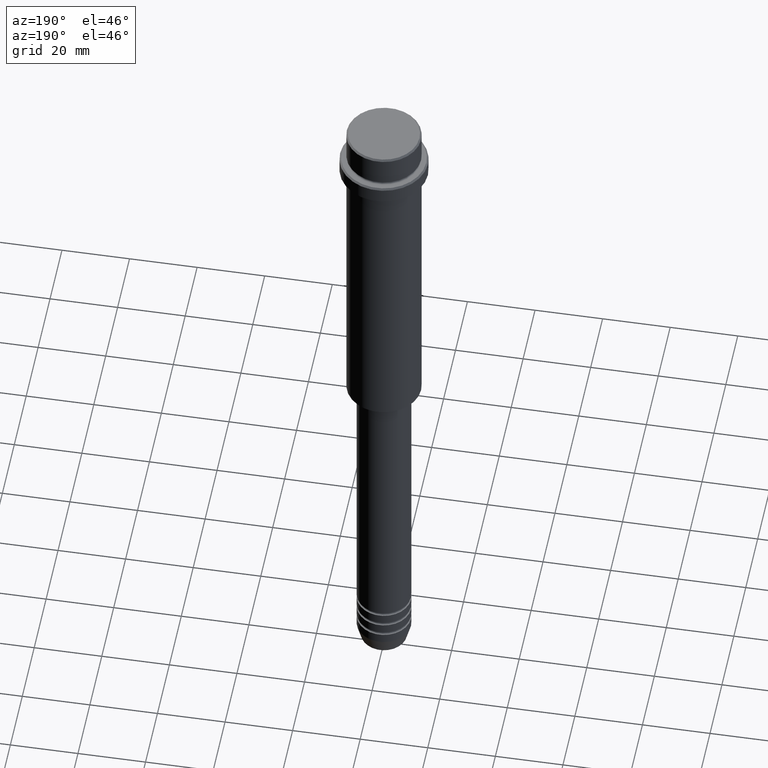
[diagram: clean part render]
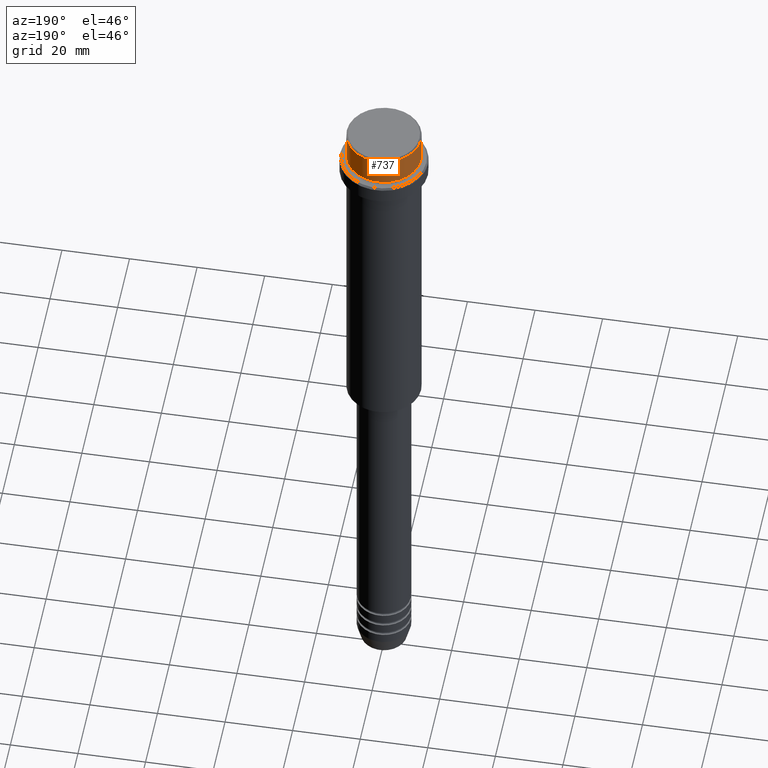
[diagram: same view with one face highlighted and labeled with its STEP entity id]
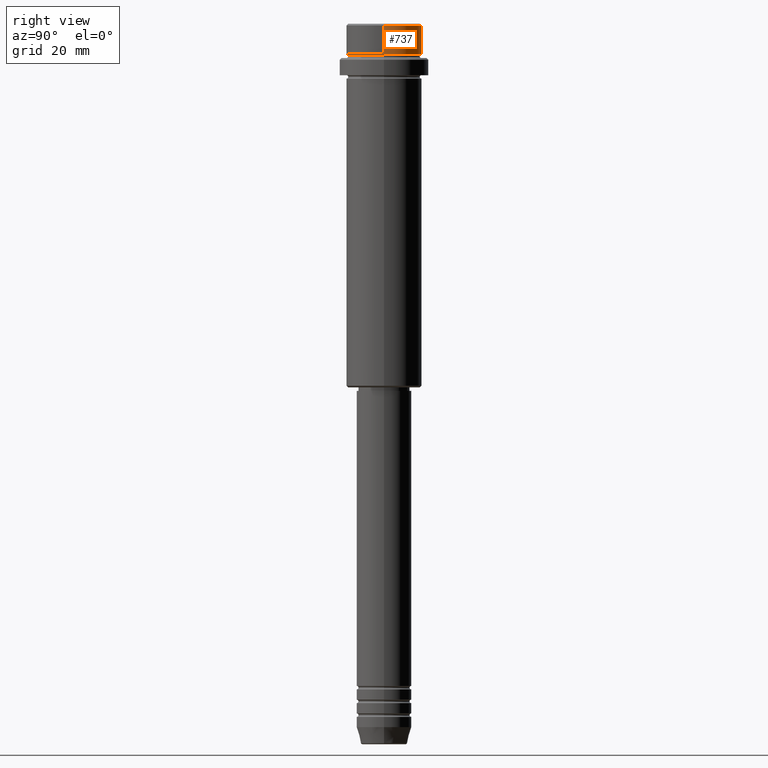
[diagram: same view with one face highlighted and labeled with its STEP entity id]
A machine part, auxiliary view. The second image highlights one B-rep face of the part: STEP entity #737.
A second angle (right view) of the same face is appended — the face is thin or edge-on in the first view.
In plain terms, the highlighted cylindrical surface (partial cylindrical patch) has radius 11 mm, axis along (-0, -0, 1).
Its self-contained STEP definition (entity closure, byte-faithful):
#81 = DIRECTION ( 'NONE',  ( -0.000000000000000000, -0.000000000000000000, 1.000000000000000000 ) ) ;
#101 = CARTESIAN_POINT ( 'NONE',  ( -10.99999999999998757, 1.347111479062086827E-15, -0.4999999999999605316 ) ) ;
#112 = DIRECTION ( 'NONE',  ( 1.000000000000000000, 0.000000000000000000, 0.000000000000000000 ) ) ;
#123 = CARTESIAN_POINT ( 'NONE',  ( 10.99999999999997158, 0.000000000000000000, -9.000000000000000000 ) ) ;
#139 = FACE_OUTER_BOUND ( 'NONE', #464, .T. ) ;
#192 = CIRCLE ( 'NONE', #762, 10.99999999999998757 ) ;
#229 = DIRECTION ( 'NONE',  ( 1.000000000000000000, 0.000000000000000000, 0.000000000000000000 ) ) ;
#299 = DIRECTION ( 'NONE',  ( -0.000000000000000000, -0.000000000000000000, 1.000000000000000000 ) ) ;
#319 = CARTESIAN_POINT ( 'NONE',  ( 10.99999999999998757, 0.000000000000000000, 0.000000000000000000 ) ) ;
#320 = EDGE_CURVE ( 'NONE', #726, #868, #1102, .T. ) ;
#332 = CARTESIAN_POINT ( 'NONE',  ( 10.99999999999998757, 0.000000000000000000, -0.4999999999999605316 ) ) ;
#340 = VECTOR ( 'NONE', #299, 1000.000000000000000 ) ;
#399 = CARTESIAN_POINT ( 'NONE',  ( 0.000000000000000000, 0.000000000000000000, -9.000000000000000000 ) ) ;
#404 = CIRCLE ( 'NONE', #1394, 10.99999999999997158 ) ;
#464 = EDGE_LOOP ( 'NONE', ( #1388, #1301, #496, #657 ) ) ;
#496 = ORIENTED_EDGE ( 'NONE', *, *, #747, .T. ) ;
#512 = DIRECTION ( 'NONE',  ( 1.000000000000000000, 0.000000000000000000, 0.000000000000000000 ) ) ;
#518 = AXIS2_PLACEMENT_3D ( 'NONE', #558, #1314, #229 ) ;
#531 = EDGE_CURVE ( 'NONE', #726, #1034, #404, .T. ) ;
#548 = CYLINDRICAL_SURFACE ( 'NONE', #518, 10.99999999999998757 ) ;
#553 = EDGE_CURVE ( 'NONE', #1034, #592, #1274, .T. ) ;
#558 = CARTESIAN_POINT ( 'NONE',  ( 0.000000000000000000, 0.000000000000000000, 0.000000000000000000 ) ) ;
#567 = CARTESIAN_POINT ( 'NONE',  ( 0.000000000000000000, 0.000000000000000000, -0.4999999999999605316 ) ) ;
#592 = VERTEX_POINT ( 'NONE', #101 ) ;
#605 = CARTESIAN_POINT ( 'NONE',  ( -10.99999999999998757, 1.347111479062086827E-15, 0.000000000000000000 ) ) ;
#657 = ORIENTED_EDGE ( 'NONE', *, *, #320, .F. ) ;
#726 = VERTEX_POINT ( 'NONE', #123 ) ;
#737 = ADVANCED_FACE ( 'NONE', ( #139 ), #548, .T. ) ;
#747 = EDGE_CURVE ( 'NONE', #592, #868, #192, .T. ) ;
#762 = AXIS2_PLACEMENT_3D ( 'NONE', #567, #771, #112 ) ;
#771 = DIRECTION ( 'NONE',  ( 0.000000000000000000, 0.000000000000000000, -1.000000000000000000 ) ) ;
#832 = CARTESIAN_POINT ( 'NONE',  ( -10.99999999999997158, 1.347111479062085841E-15, -9.000000000000000000 ) ) ;
#868 = VERTEX_POINT ( 'NONE', #332 ) ;
#1034 = VERTEX_POINT ( 'NONE', #832 ) ;
#1102 = LINE ( 'NONE', #319, #1113 ) ;
#1113 = VECTOR ( 'NONE', #1212, 1000.000000000000000 ) ;
#1212 = DIRECTION ( 'NONE',  ( -0.000000000000000000, -0.000000000000000000, 1.000000000000000000 ) ) ;
#1274 = LINE ( 'NONE', #605, #340 ) ;
#1301 = ORIENTED_EDGE ( 'NONE', *, *, #553, .T. ) ;
#1314 = DIRECTION ( 'NONE',  ( -0.000000000000000000, -0.000000000000000000, 1.000000000000000000 ) ) ;
#1388 = ORIENTED_EDGE ( 'NONE', *, *, #531, .T. ) ;
#1394 = AXIS2_PLACEMENT_3D ( 'NONE', #399, #81, #512 ) ;